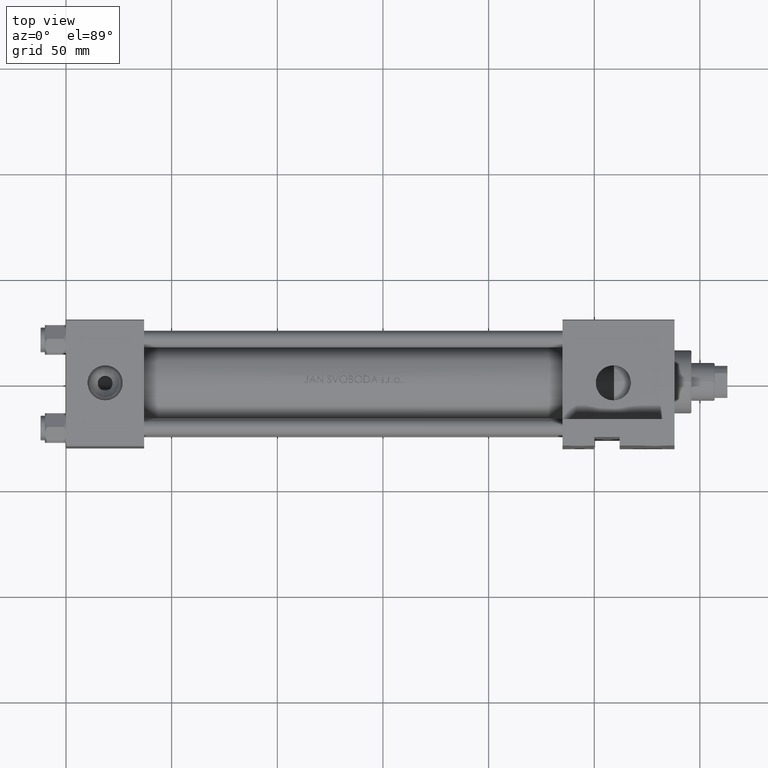
[diagram: clean part render]
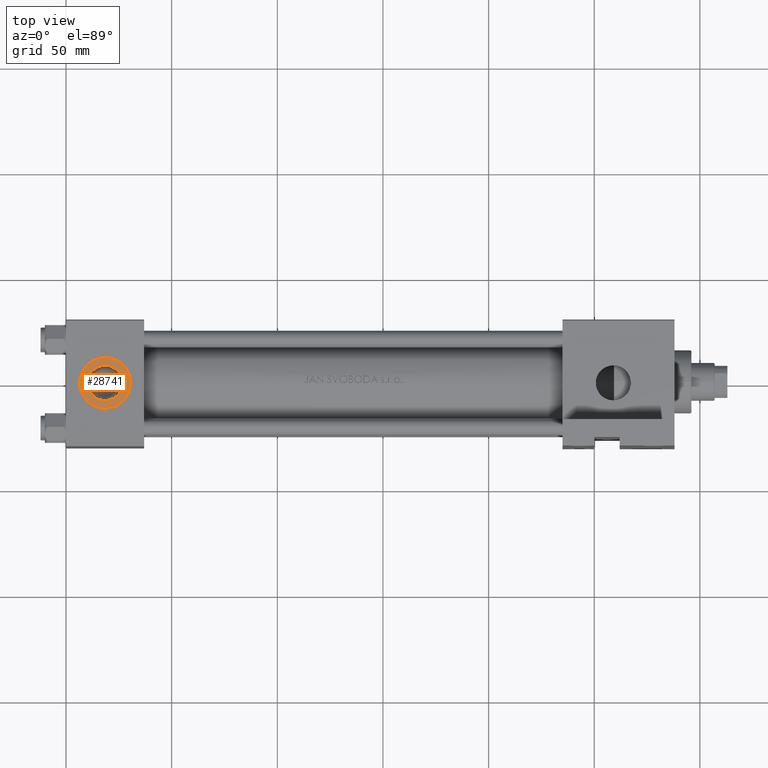
[diagram: same view with one face highlighted and labeled with its STEP entity id]
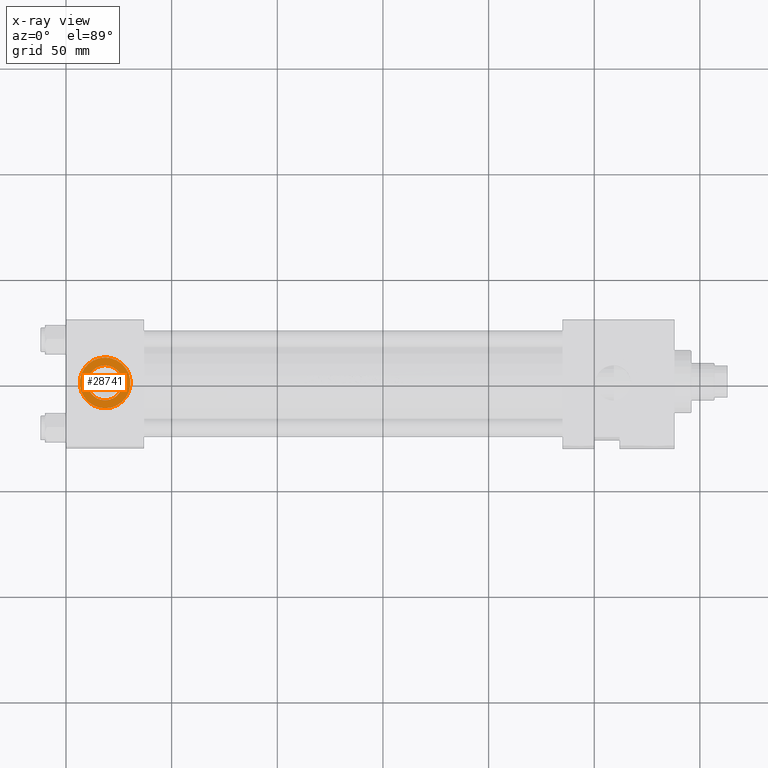
[diagram: x-ray of the same camera — body ghosted, the highlighted face saturated]
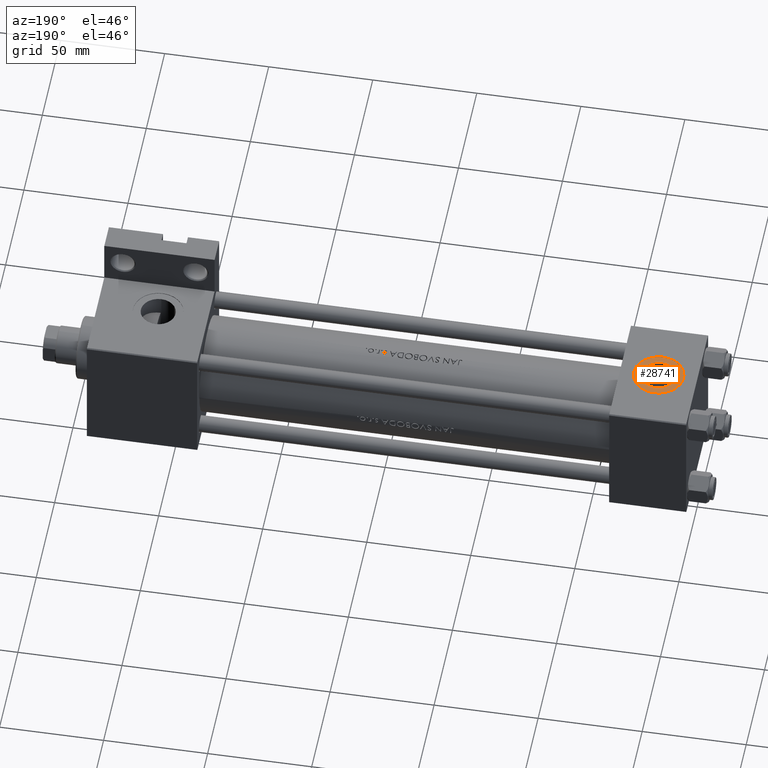
[diagram: same view with one face highlighted and labeled with its STEP entity id]
A machine part, top view. The second image highlights one B-rep face of the part: STEP entity #28741.
The next image is the same camera in x-ray: the body ghosted, the highlighted face saturated — about 0% of this face is hidden behind the body in this view.
A second angle (auxiliary view) of the same face is appended — the face is thin or edge-on in the first view.
In plain terms, the highlighted planar face has unit normal (0, -0, 1).
Its self-contained STEP definition (entity closure, byte-faithful):
#1251 = EDGE_LOOP ( 'NONE', ( #5252, #2774 ) ) ;
#1286 = CARTESIAN_POINT ( 'NONE',  ( 18.50000000000000000, -29.80000000000000071, -12.00000000000000178 ) ) ;
#2774 = ORIENTED_EDGE ( 'NONE', *, *, #41593, .F. ) ;
#2882 = ORIENTED_EDGE ( 'NONE', *, *, #45368, .T. ) ;
#3247 = FACE_OUTER_BOUND ( 'NONE', #34436, .T. ) ;
#5252 = ORIENTED_EDGE ( 'NONE', *, *, #20926, .F. ) ;
#5504 = ORIENTED_EDGE ( 'NONE', *, *, #36257, .T. ) ;
#7632 = AXIS2_PLACEMENT_3D ( 'NONE', #10702, #25750, #37096 ) ;
#9968 = CIRCLE ( 'NONE', #33604, 8.330000000000001847 ) ;
#10702 = CARTESIAN_POINT ( 'NONE',  ( 18.50000000000000000, -29.80000000000000071, 1.734723475976807403E-17 ) ) ;
#10839 = CIRCLE ( 'NONE', #47026, 8.330000000000001847 ) ;
#14938 = CARTESIAN_POINT ( 'NONE',  ( 18.50000000000000000, -29.80000000000000071, 12.00000000000000178 ) ) ;
#15685 = DIRECTION ( 'NONE',  ( 0.000000000000000000, -1.000000000000000000, -8.673617379884036705E-17 ) ) ;
#16160 = DIRECTION ( 'NONE',  ( 0.000000000000000000, 0.000000000000000000, -1.000000000000000000 ) ) ;
#17789 = FACE_BOUND ( 'NONE', #1251, .T. ) ;
#18281 = PLANE ( 'NONE',  #34633 ) ;
#18390 = CARTESIAN_POINT ( 'NONE',  ( 18.50000000000000000, -29.80000000000000071, 8.330000000000001847 ) ) ;
#18643 = CIRCLE ( 'NONE', #7632, 12.00000000000000178 ) ;
#20526 = CARTESIAN_POINT ( 'NONE',  ( 18.50000000000000000, -29.80000000000000071, -8.330000000000001847 ) ) ;
#20926 = EDGE_CURVE ( 'NONE', #31346, #35944, #9968, .T. ) ;
#21862 = DIRECTION ( 'NONE',  ( 0.000000000000000000, 0.000000000000000000, -1.000000000000000000 ) ) ;
#25677 = CARTESIAN_POINT ( 'NONE',  ( 18.50000000000000000, -29.80000000000000071, 1.734723475976808635E-17 ) ) ;
#25750 = DIRECTION ( 'NONE',  ( 0.000000000000000000, -1.000000000000000000, -8.673617379884036705E-17 ) ) ;
#27044 = CARTESIAN_POINT ( 'NONE',  ( 18.50000000000000000, -29.80000000000000071, 1.734723475976808635E-17 ) ) ;
#27234 = VERTEX_POINT ( 'NONE', #14938 ) ;
#28741 = ADVANCED_FACE ( 'NONE', ( #17789, #3247 ), #18281, .T. ) ;
#31346 = VERTEX_POINT ( 'NONE', #20526 ) ;
#32838 = CARTESIAN_POINT ( 'NONE',  ( 18.50000000000000000, -29.80000000000000071, 1.734723475976807403E-17 ) ) ;
#33336 = DIRECTION ( 'NONE',  ( 0.000000000000000000, -1.000000000000000000, -8.673617379884036705E-17 ) ) ;
#33604 = AXIS2_PLACEMENT_3D ( 'NONE', #27044, #15685, #16160 ) ;
#34436 = EDGE_LOOP ( 'NONE', ( #2882, #5504 ) ) ;
#34633 = AXIS2_PLACEMENT_3D ( 'NONE', #32838, #33336, #47858 ) ;
#35049 = VERTEX_POINT ( 'NONE', #1286 ) ;
#35944 = VERTEX_POINT ( 'NONE', #18390 ) ;
#36257 = EDGE_CURVE ( 'NONE', #27234, #35049, #18643, .T. ) ;
#36780 = DIRECTION ( 'NONE',  ( 0.000000000000000000, -1.000000000000000000, -8.673617379884036705E-17 ) ) ;
#37096 = DIRECTION ( 'NONE',  ( 0.000000000000000000, 0.000000000000000000, -1.000000000000000000 ) ) ;
#40852 = CARTESIAN_POINT ( 'NONE',  ( 18.50000000000000000, -29.80000000000000071, 1.734723475976807403E-17 ) ) ;
#41593 = EDGE_CURVE ( 'NONE', #35944, #31346, #10839, .T. ) ;
#44154 = DIRECTION ( 'NONE',  ( 0.000000000000000000, 0.000000000000000000, -1.000000000000000000 ) ) ;
#44815 = CIRCLE ( 'NONE', #47984, 12.00000000000000178 ) ;
#45368 = EDGE_CURVE ( 'NONE', #35049, #27234, #44815, .T. ) ;
#47026 = AXIS2_PLACEMENT_3D ( 'NONE', #25677, #36780, #44154 ) ;
#47858 = DIRECTION ( 'NONE',  ( 0.000000000000000000, 8.673617379884036705E-17, -1.000000000000000000 ) ) ;
#47984 = AXIS2_PLACEMENT_3D ( 'NONE', #40852, #48723, #21862 ) ;
#48723 = DIRECTION ( 'NONE',  ( 0.000000000000000000, -1.000000000000000000, -8.673617379884036705E-17 ) ) ;